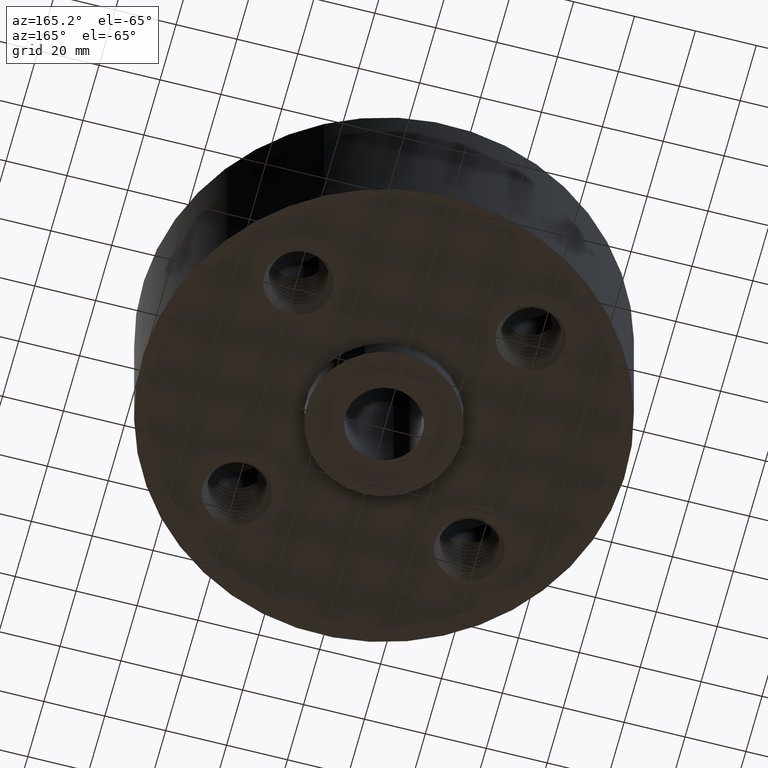
[diagram: clean part render]
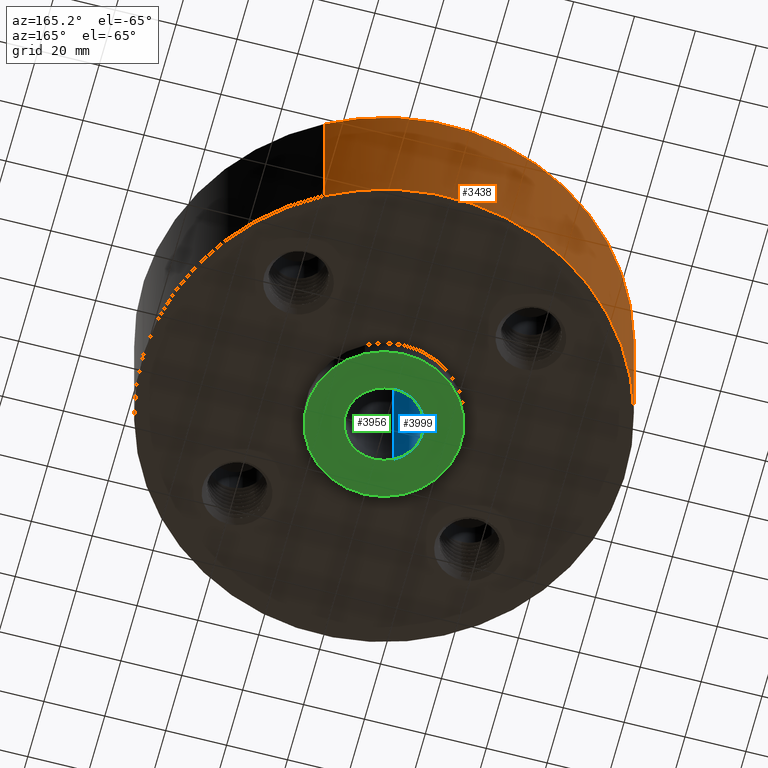
[diagram: same view with three faces highlighted in distinct colors, each labeled with its STEP entity id]
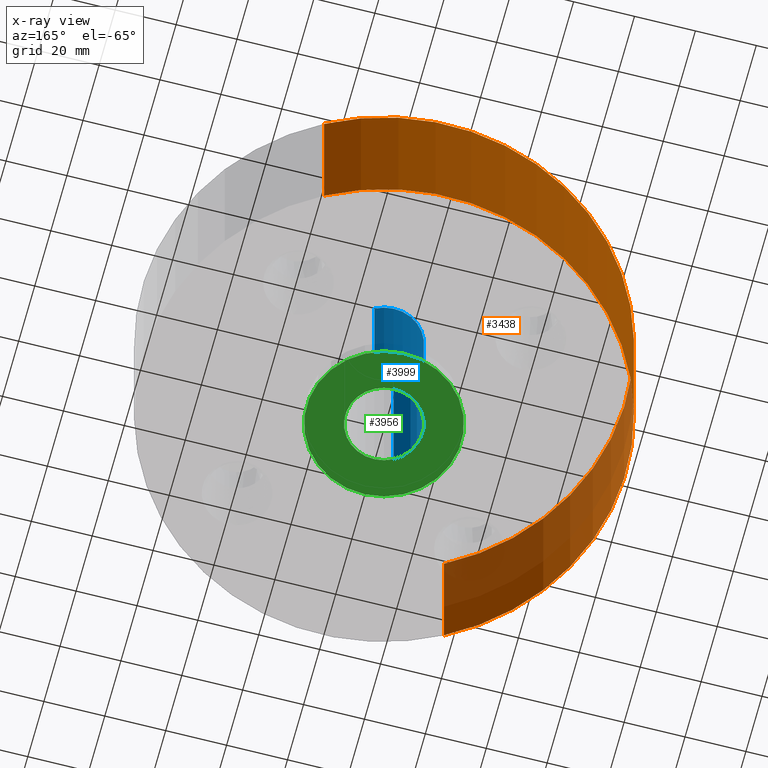
[diagram: x-ray of the same camera — body ghosted, the three highlighted faces saturated]
A machine part, auxiliary view with three faces highlighted in distinct colors.
The next image is the same camera in x-ray (body ghosted, the three faces saturated) — at least one of them is partly hidden behind the body in this view.
Their STEP definitions:

[orange] entity #3438 — the highlighted cylindrical surface (partial cylindrical patch) has radius 79.375 mm, axis along (0, 0, -1).
#3315=AXIS2_PLACEMENT_3D('Circle Axis2P3D',#3313,#3314,$) ;
#3411=AXIS2_PLACEMENT_3D('Cylinder Axis2P3D',#3408,#3409,#3410) ;
#3422=AXIS2_PLACEMENT_3D('Circle Axis2P3D',#3420,#3421,$) ;
#3313=CARTESIAN_POINT('Axis2P3D Location',(0.,0.,0.)) ;
#3317=CARTESIAN_POINT('Vertex',(-1.49820480814,-2.74244550592,-3.72055841953E-014)) ;
#3319=CARTESIAN_POINT('Vertex',(1.49820480814,2.74244550592,-3.72055841953E-014)) ;
#3408=CARTESIAN_POINT('Axis2P3D Location',(0.,0.,0.935000000004)) ;
#3413=CARTESIAN_POINT('Line Origine',(-1.49820480814,-2.74244550592,1.06)) ;
#3417=CARTESIAN_POINT('Vertex',(-1.49820480814,-2.74244550592,2.12000000001)) ;
#3420=CARTESIAN_POINT('Axis2P3D Location',(0.,0.,2.12000000001)) ;
#3424=CARTESIAN_POINT('Vertex',(1.49820480814,2.74244550592,2.12000000001)) ;
#3427=CARTESIAN_POINT('Line Origine',(1.49820480814,2.74244550592,1.06)) ;
#3314=DIRECTION('Axis2P3D Direction',(0.,0.,-0.0393700787402)) ;
#3409=DIRECTION('Axis2P3D Direction',(0.,0.,-0.0393700787402)) ;
#3410=DIRECTION('Axis2P3D XDirection',(0.0188750212049,0.0345504945626,0.)) ;
#3414=DIRECTION('Vector Direction',(0.,0.,-0.0393700787402)) ;
#3421=DIRECTION('Axis2P3D Direction',(0.,0.,-0.0393700787402)) ;
#3428=DIRECTION('Vector Direction',(0.,0.,-0.0393700787402)) ;
#3415=VECTOR('Line Direction',#3414,0.0393700787402) ;
#3429=VECTOR('Line Direction',#3428,0.0393700787402) ;
#3433=ORIENTED_EDGE('',*,*,#3321,.F.) ;
#3434=ORIENTED_EDGE('',*,*,#3419,.T.) ;
#3435=ORIENTED_EDGE('',*,*,#3426,.T.) ;
#3436=ORIENTED_EDGE('',*,*,#3431,.F.) ;
#3438=ADVANCED_FACE('PartBody',(#3437),#3412,.T.) ;
#3316=CIRCLE('generated circle',#3315,3.12500000001) ;
#3423=CIRCLE('generated circle',#3422,3.12500000001) ;
#3412=CYLINDRICAL_SURFACE('generated cylinder',#3411,3.12500000001) ;
#3321=EDGE_CURVE('',#3318,#3320,#3316,.T.) ;
#3419=EDGE_CURVE('',#3318,#3418,#3416,.F.) ;
#3426=EDGE_CURVE('',#3418,#3425,#3423,.T.) ;
#3431=EDGE_CURVE('',#3320,#3425,#3430,.F.) ;
#3432=EDGE_LOOP('',(#3433,#3434,#3435,#3436)) ;
#3437=FACE_OUTER_BOUND('',#3432,.T.) ;
#3416=LINE('Line',#3413,#3415) ;
#3430=LINE('Line',#3427,#3429) ;
#3318=VERTEX_POINT('',#3317) ;
#3320=VERTEX_POINT('',#3319) ;
#3418=VERTEX_POINT('',#3417) ;
#3425=VERTEX_POINT('',#3424) ;

[blue] entity #3999 — the highlighted cylindrical surface (partial cylindrical patch) has radius 12.7 mm, axis along (0, 0, -1).
#3949=AXIS2_PLACEMENT_3D('Circle Axis2P3D',#3947,#3948,$) ;
#3960=AXIS2_PLACEMENT_3D('Cylinder Axis2P3D',#3957,#3958,#3959) ;
#3990=AXIS2_PLACEMENT_3D('Circle Axis2P3D',#3988,#3989,$) ;
#3942=CARTESIAN_POINT('Vertex',(0.239712769303,0.438791280947,-0.250000000001)) ;
#3944=CARTESIAN_POINT('Vertex',(-0.239712769303,-0.438791280947,-0.250000000001)) ;
#3947=CARTESIAN_POINT('Axis2P3D Location',(0.,0.,-0.250000000001)) ;
#3957=CARTESIAN_POINT('Axis2P3D Location',(0.,0.,0.935000000004)) ;
#3966=CARTESIAN_POINT('Vertex',(0.239712769303,0.438791280947,2.12000000001)) ;
#3968=CARTESIAN_POINT('Vertex',(-0.239712769303,-0.438791280947,2.12000000001)) ;
#3971=CARTESIAN_POINT('Line Origine',(0.239712769303,0.438791280947,0.935000000004)) ;
#3976=CARTESIAN_POINT('Line Origine',(-0.239712769303,-0.438791280947,0.935000000004)) ;
#3988=CARTESIAN_POINT('Axis2P3D Location',(0.,0.,2.12000000001)) ;
#3948=DIRECTION('Axis2P3D Direction',(0.,0.,-0.0393700787402)) ;
#3958=DIRECTION('Axis2P3D Direction',(0.,0.,-0.0393700787402)) ;
#3959=DIRECTION('Axis2P3D XDirection',(-0.0188750212049,-0.0345504945626,0.)) ;
#3972=DIRECTION('Vector Direction',(0.,0.,-0.0393700787402)) ;
#3977=DIRECTION('Vector Direction',(0.,0.,-0.0393700787402)) ;
#3989=DIRECTION('Axis2P3D Direction',(0.,0.,-0.0393700787402)) ;
#3973=VECTOR('Line Direction',#3972,0.0393700787402) ;
#3978=VECTOR('Line Direction',#3977,0.0393700787402) ;
#3994=ORIENTED_EDGE('',*,*,#3992,.F.) ;
#3995=ORIENTED_EDGE('',*,*,#3980,.T.) ;
#3996=ORIENTED_EDGE('',*,*,#3951,.T.) ;
#3997=ORIENTED_EDGE('',*,*,#3975,.F.) ;
#3999=ADVANCED_FACE('PartBody',(#3998),#3961,.F.) ;
#3950=CIRCLE('generated circle',#3949,0.500000000002) ;
#3991=CIRCLE('generated circle',#3990,0.500000000002) ;
#3961=CYLINDRICAL_SURFACE('generated cylinder',#3960,0.500000000002) ;
#3951=EDGE_CURVE('',#3945,#3943,#3950,.T.) ;
#3975=EDGE_CURVE('',#3967,#3943,#3974,.T.) ;
#3980=EDGE_CURVE('',#3969,#3945,#3979,.T.) ;
#3992=EDGE_CURVE('',#3969,#3967,#3991,.T.) ;
#3993=EDGE_LOOP('',(#3994,#3995,#3996,#3997)) ;
#3998=FACE_OUTER_BOUND('',#3993,.T.) ;
#3974=LINE('Line',#3971,#3973) ;
#3979=LINE('Line',#3976,#3978) ;
#3943=VERTEX_POINT('',#3942) ;
#3945=VERTEX_POINT('',#3944) ;
#3967=VERTEX_POINT('',#3966) ;
#3969=VERTEX_POINT('',#3968) ;

[green] entity #3956 — the highlighted planar face has unit normal (0, 0, -1).
#3458=AXIS2_PLACEMENT_3D('Circle Axis2P3D',#3456,#3457,$) ;
#3484=AXIS2_PLACEMENT_3D('Circle Axis2P3D',#3482,#3483,$) ;
#3932=AXIS2_PLACEMENT_3D('Plane Axis2P3D',#3929,#3930,#3931) ;
#3940=AXIS2_PLACEMENT_3D('Circle Axis2P3D',#3938,#3939,$) ;
#3949=AXIS2_PLACEMENT_3D('Circle Axis2P3D',#3947,#3948,$) ;
#3456=CARTESIAN_POINT('Axis2P3D Location',(0.,0.,-0.250000000001)) ;
#3460=CARTESIAN_POINT('Vertex',(0.479425538606,0.877582561894,-0.250000000001)) ;
#3462=CARTESIAN_POINT('Vertex',(-0.479425538606,-0.877582561894,-0.250000000001)) ;
#3482=CARTESIAN_POINT('Axis2P3D Location',(0.,0.,-0.250000000001)) ;
#3929=CARTESIAN_POINT('Axis2P3D Location',(0.,1.,-0.250000000001)) ;
#3938=CARTESIAN_POINT('Axis2P3D Location',(0.,0.,-0.250000000001)) ;
#3942=CARTESIAN_POINT('Vertex',(0.239712769303,0.438791280947,-0.250000000001)) ;
#3944=CARTESIAN_POINT('Vertex',(-0.239712769303,-0.438791280947,-0.250000000001)) ;
#3947=CARTESIAN_POINT('Axis2P3D Location',(0.,0.,-0.250000000001)) ;
#3457=DIRECTION('Axis2P3D Direction',(0.,0.,-0.0393700787402)) ;
#3483=DIRECTION('Axis2P3D Direction',(0.,0.,-0.0393700787402)) ;
#3930=DIRECTION('Axis2P3D Direction',(0.,0.,-0.0393700787402)) ;
#3931=DIRECTION('Axis2P3D XDirection',(0.0393700787402,0.,0.)) ;
#3939=DIRECTION('Axis2P3D Direction',(0.,0.,-0.0393700787402)) ;
#3948=DIRECTION('Axis2P3D Direction',(0.,0.,-0.0393700787402)) ;
#3935=ORIENTED_EDGE('',*,*,#3486,.T.) ;
#3936=ORIENTED_EDGE('',*,*,#3464,.T.) ;
#3953=ORIENTED_EDGE('',*,*,#3946,.F.) ;
#3954=ORIENTED_EDGE('',*,*,#3951,.F.) ;
#3955=FACE_BOUND('',#3952,.T.) ;
#3956=ADVANCED_FACE('PartBody',(#3937,#3955),#3933,.T.) ;
#3459=CIRCLE('generated circle',#3458,1.) ;
#3485=CIRCLE('generated circle',#3484,1.) ;
#3941=CIRCLE('generated circle',#3940,0.500000000002) ;
#3950=CIRCLE('generated circle',#3949,0.500000000002) ;
#3464=EDGE_CURVE('',#3461,#3463,#3459,.T.) ;
#3486=EDGE_CURVE('',#3463,#3461,#3485,.T.) ;
#3946=EDGE_CURVE('',#3943,#3945,#3941,.T.) ;
#3951=EDGE_CURVE('',#3945,#3943,#3950,.T.) ;
#3934=EDGE_LOOP('',(#3935,#3936)) ;
#3952=EDGE_LOOP('',(#3953,#3954)) ;
#3937=FACE_OUTER_BOUND('',#3934,.T.) ;
#3933=PLANE('',#3932) ;
#3461=VERTEX_POINT('',#3460) ;
#3463=VERTEX_POINT('',#3462) ;
#3943=VERTEX_POINT('',#3942) ;
#3945=VERTEX_POINT('',#3944) ;